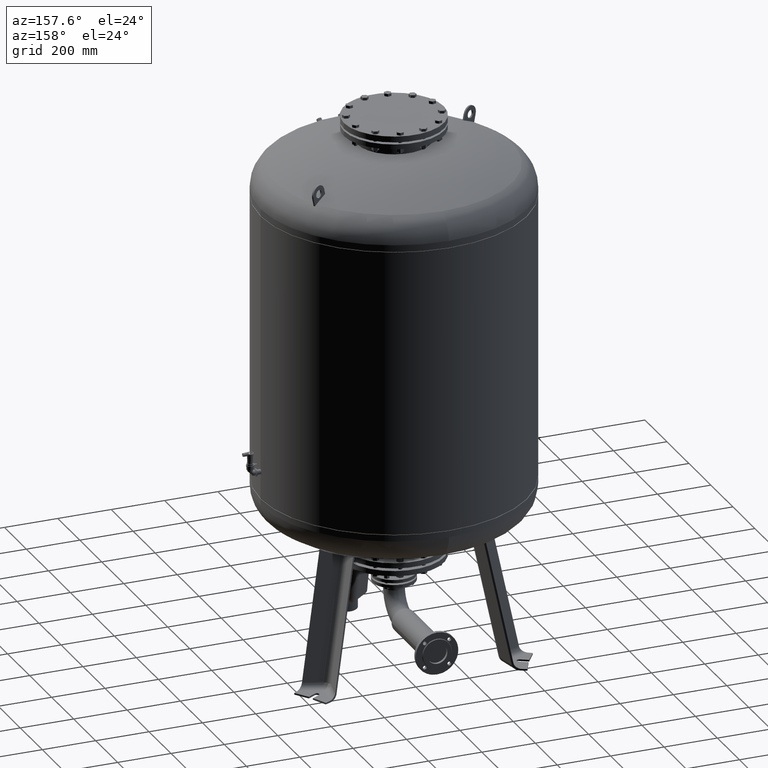
[diagram: clean part render]
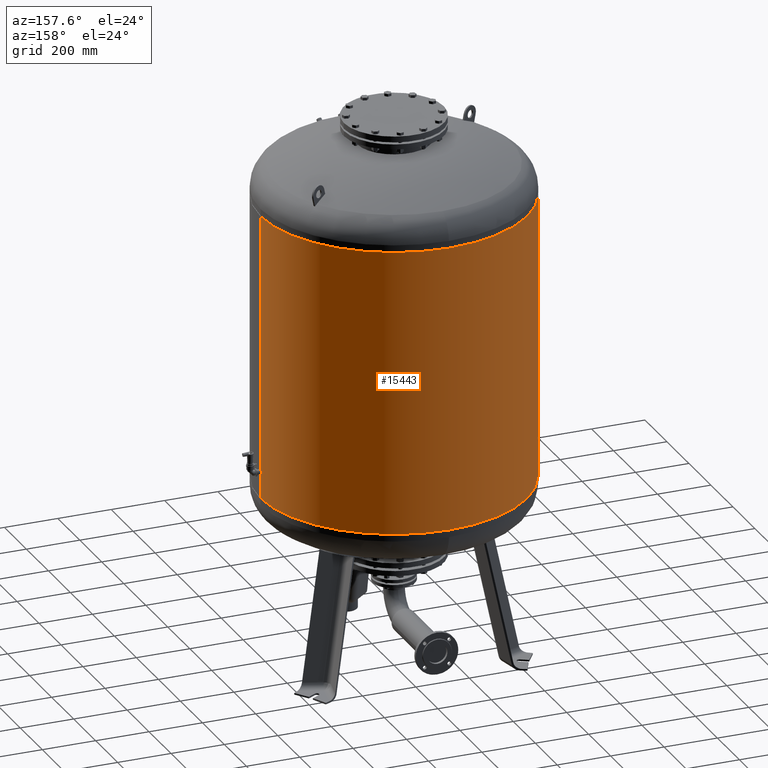
[diagram: same view with one face highlighted and labeled with its STEP entity id]
A machine part, auxiliary view. The second image highlights one B-rep face of the part: STEP entity #15443.
In plain terms, the highlighted cylindrical surface (partial cylindrical patch) has radius 500 mm, axis along (0, 0, 1).
Its self-contained STEP definition (entity closure, byte-faithful):
#15323=CARTESIAN_POINT('',(500.000000000000570,0.0,1749.500000000000000));
#15324=VERTEX_POINT('',#15323);
#15325=CARTESIAN_POINT('',(499.999999999999890,0.0,680.500000000000000));
#15326=VERTEX_POINT('',#15325);
#15327=CARTESIAN_POINT('',(500.000000000000570,0.0,1749.500000000000000));
#15328=DIRECTION('',(0.0,0.0,-1.0));
#15329=VECTOR('',#15328,1069.0);
#15330=LINE('',#15327,#15329);
#15331=EDGE_CURVE('',#15324,#15326,#15330,.T.);
#15333=CARTESIAN_POINT('',(-500.000000000000570,-6.123032E-014,1749.500000000000000));
#15334=VERTEX_POINT('',#15333);
#15342=CARTESIAN_POINT('',(-499.999999999999890,-6.123032E-014,680.500000000000000));
#15343=VERTEX_POINT('',#15342);
#15344=CARTESIAN_POINT('',(-500.000000000000570,-6.123032E-014,1749.500000000000000));
#15345=DIRECTION('',(0.0,0.0,-1.0));
#15346=VECTOR('',#15345,1069.0);
#15347=LINE('',#15344,#15346);
#15348=EDGE_CURVE('',#15334,#15343,#15347,.T.);
#15416=CARTESIAN_POINT('',(-1.659482E-014,0.0,680.500000000000000));
#15417=DIRECTION('',(0.0,0.0,1.0));
#15418=DIRECTION('',(1.0,0.0,0.0));
#15419=AXIS2_PLACEMENT_3D('',#15416,#15417,#15418);
#15420=CIRCLE('',#15419,499.999999999999890);
#15421=EDGE_CURVE('',#15326,#15343,#15420,.T.);
#15426=CARTESIAN_POINT('',(8.297411E-015,0.0,1482.250000000000000));
#15427=DIRECTION('',(3.104738E-017,0.0,1.0));
#15428=DIRECTION('',(1.0,0.0,0.0));
#15429=AXIS2_PLACEMENT_3D('',#15426,#15427,#15428);
#15430=CYLINDRICAL_SURFACE('',#15429,500.000000000000570);
#15431=ORIENTED_EDGE('',*,*,#15331,.T.);
#15432=ORIENTED_EDGE('',*,*,#15421,.T.);
#15433=ORIENTED_EDGE('',*,*,#15348,.F.);
#15434=CARTESIAN_POINT('',(1.659482E-014,0.0,1749.500000000000000));
#15435=DIRECTION('',(0.0,0.0,1.0));
#15436=DIRECTION('',(1.0,0.0,0.0));
#15437=AXIS2_PLACEMENT_3D('',#15434,#15435,#15436);
#15438=CIRCLE('',#15437,500.000000000000570);
#15439=EDGE_CURVE('',#15324,#15334,#15438,.T.);
#15440=ORIENTED_EDGE('',*,*,#15439,.F.);
#15441=EDGE_LOOP('',(#15431,#15432,#15433,#15440));
#15442=FACE_OUTER_BOUND('',#15441,.T.);
#15443=ADVANCED_FACE('',(#15442),#15430,.T.);